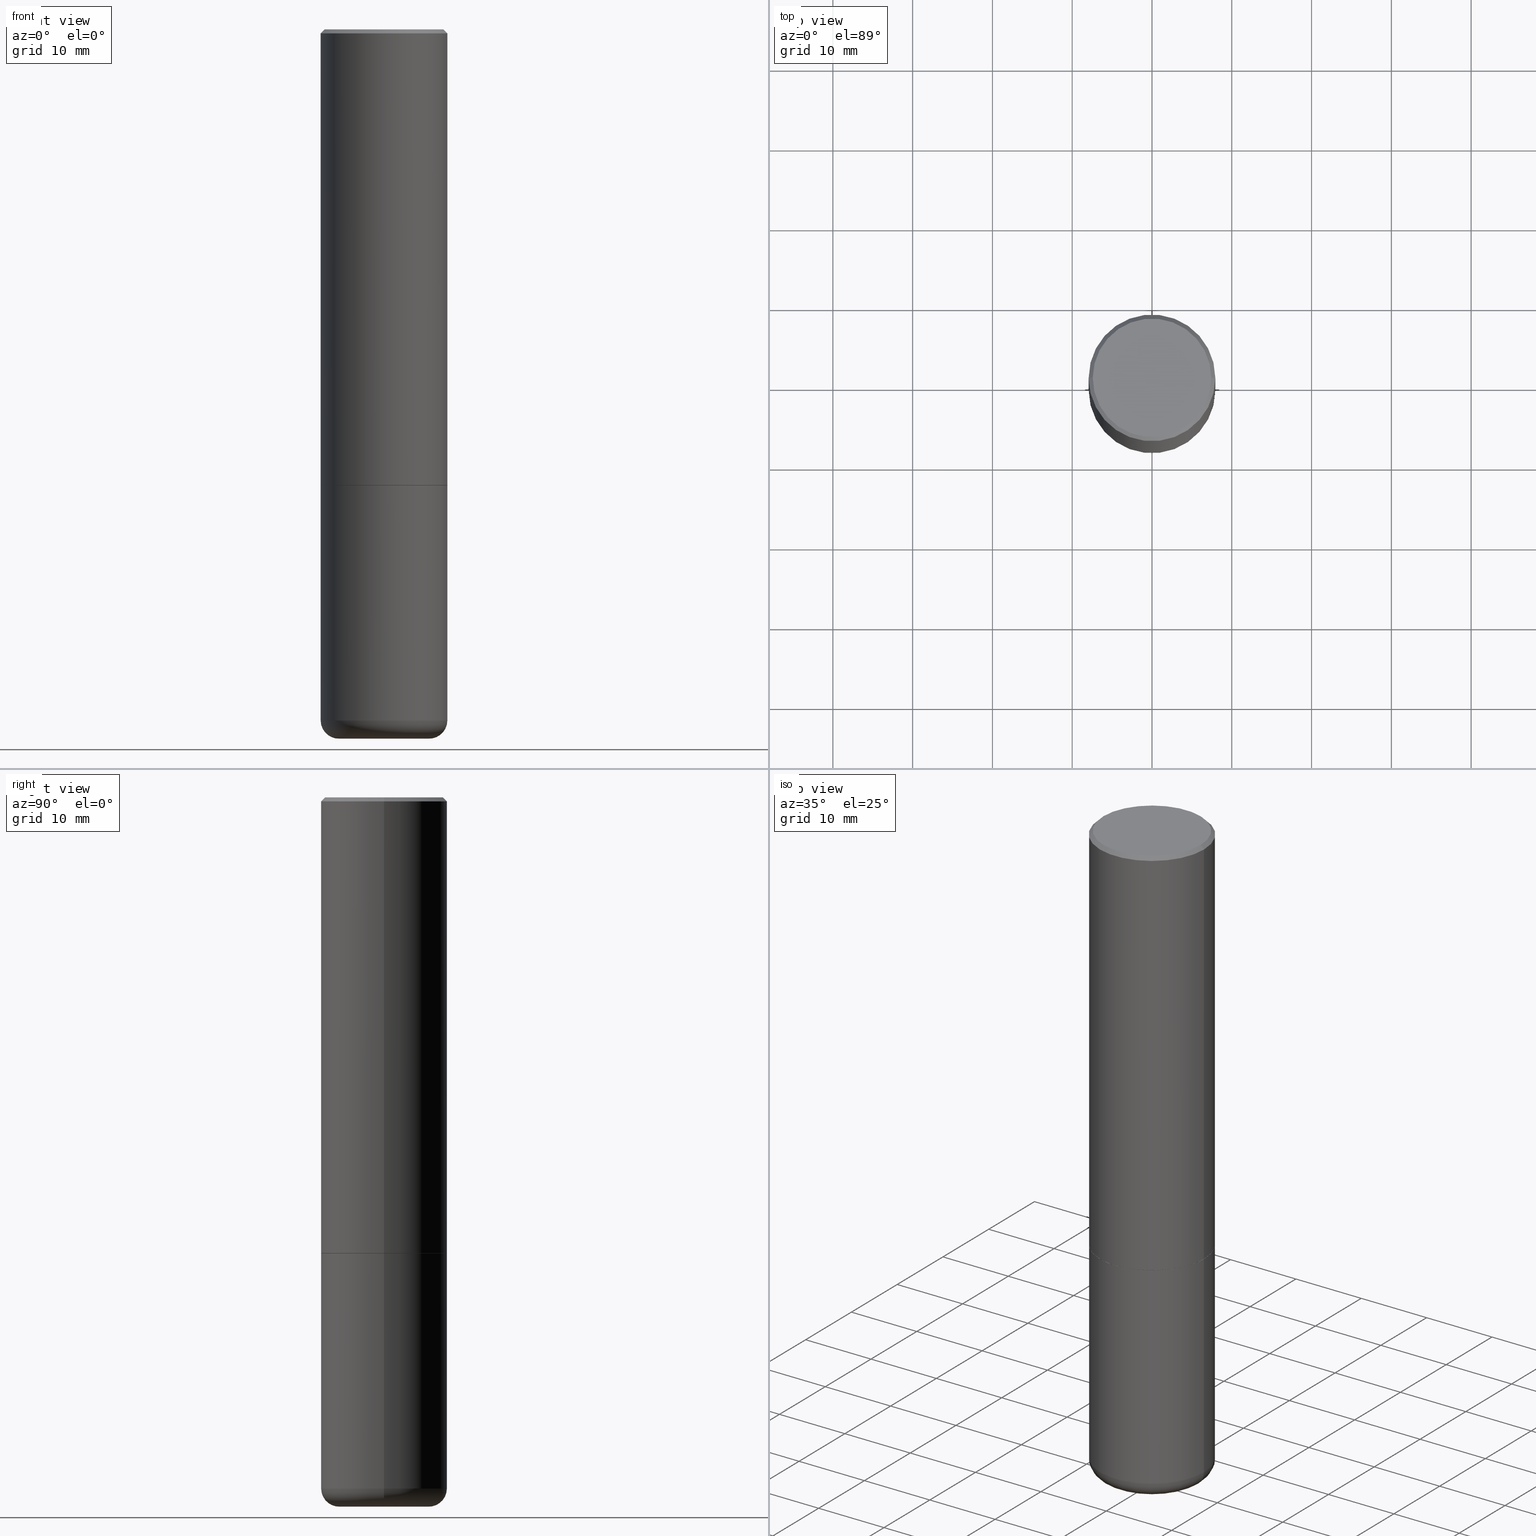
[diagram: canonical four-view strip — front | top / right | iso, engineering-drawing reading convention]
A machine part, canonical four-view strip (front | top / right | iso — engineering-drawing reading convention). The complete STEP part file that produces these views, byte-faithful:
ISO-10303-21;
HEADER;
FILE_DESCRIPTION (( 'STEP AP203' ),
    '1' );
FILE_NAME ('38083.STEP',
    '2023-03-22T20:16:22',
    ( '' ),
    ( '' ),
    'SwSTEP 2.0',
    'SolidWorks 2022',
    '' );
FILE_SCHEMA (( 'CONFIG_CONTROL_DESIGN' ));
ENDSEC;

DATA;
#1 = CARTESIAN_POINT ( 'NONE',  ( -0.3114999999999999991, -5.642492390504364798E-15, -2.249999999999999556 ) ) ;
#2 = EDGE_LOOP ( 'NONE', ( #284, #131 ) ) ;
#3 = CARTESIAN_POINT ( 'NONE',  ( 0.3125000000000001665, -2.182175836776959530E-15, 1.523805242436230636E-29 ) ) ;
#4 = CARTESIAN_POINT ( 'NONE',  ( 8.530579847116427823E-29, -1.218126230851714959E-14, -3.488586122121426047 ) ) ;
#5 = CARTESIAN_POINT ( 'NONE',  ( 5.502304813916556222E-29, -7.855833012397076871E-15, -2.249999999999999556 ) ) ;
#6 = CIRCLE ( 'NONE', #253, 0.3125000000000002776 ) ;
#7 = CC_DESIGN_PERSON_AND_ORGANIZATION_ASSIGNMENT ( #296, #89, ( #173 ) ) ;
#8 = VERTEX_POINT ( 'NONE', #276 ) ;
#9 = ORIENTED_EDGE ( 'NONE', *, *, #212, .T. ) ;
#10 = EDGE_LOOP ( 'NONE', ( #137, #77, #236, #417 ) ) ;
#11 = CARTESIAN_POINT ( 'NONE',  ( 2.182175836777013173E-15, 0.3124999999999921729, -2.250000000000000444 ) ) ;
#12 = VERTEX_POINT ( 'NONE', #175 ) ;
#13 = ORIENTED_EDGE ( 'NONE', *, *, #340, .T. ) ;
#14 = APPLICATION_CONTEXT ( 'configuration controlled 3d designs of mechanical parts and assemblies' ) ;
#15 = EDGE_CURVE ( 'NONE', #411, #12, #291, .T. ) ;
#16 = CC_DESIGN_PERSON_AND_ORGANIZATION_ASSIGNMENT ( #364, #259, ( #275 ) ) ;
#17 = DIRECTION ( 'NONE',  ( -2.445468806185136597E-29, 3.491481338843145583E-15, 1.000000000000000000 ) ) ;
#18 = APPLICATION_PROTOCOL_DEFINITION ( 'international standard', 'config_control_design', 1994, #14 ) ;
#19 = CARTESIAN_POINT ( 'NONE',  ( 5.502304813916556222E-29, -7.855833012397076871E-15, -2.249999999999999556 ) ) ;
#20 = ORIENTED_EDGE ( 'NONE', *, *, #47, .T. ) ;
#21 = VECTOR ( 'NONE', #257, 39.37007874015748143 ) ;
#22 = ADVANCED_FACE ( 'NONE', ( #385 ), #356, .T. ) ;
#23 = MECHANICAL_CONTEXT ( 'NONE', #180, 'mechanical' ) ;
#24 = AXIS2_PLACEMENT_3D ( 'NONE', #30, #97, #372 ) ;
#25 =( LENGTH_UNIT ( ) NAMED_UNIT ( * ) SI_UNIT ( $, .METRE. ) );
#26 = CARTESIAN_POINT ( 'NONE',  ( 0.3114999999999999991, -1.003102588649634920E-14, -2.249999999999999556 ) ) ;
#27 = PERSON_AND_ORGANIZATION_ROLE ( 'creator' ) ;
#28 = CARTESIAN_POINT ( 'NONE',  ( 5.499859345110370619E-29, -7.852341531058232286E-15, -2.248999999999999222 ) ) ;
#29 = DIRECTION ( 'NONE',  ( 1.000000000000000000, -6.982962677686265133E-15, 0.000000000000000000 ) ) ;
#30 = CARTESIAN_POINT ( 'NONE',  ( 4.890937612370278413E-31, -6.982962677686297772E-17, -0.02000000000000002123 ) ) ;
#31 = DIRECTION ( 'NONE',  ( -2.445468806185136597E-29, 3.491481338843145583E-15, 1.000000000000000000 ) ) ;
#32 = CONICAL_SURFACE ( 'NONE', #102, 751.2258538476771719, 1.518436449235074370 ) ;
#33 = PRODUCT_DEFINITION_FORMATION_WITH_SPECIFIED_SOURCE ( 'ANY', '', #275, .NOT_KNOWN. ) ;
#34 = DIRECTION ( 'NONE',  ( -2.445468806185136877E-29, 3.491481338843145188E-15, 1.000000000000000000 ) ) ;
#35 = ORIENTED_EDGE ( 'NONE', *, *, #115, .F. ) ;
#36 = FACE_OUTER_BOUND ( 'NONE', #280, .T. ) ;
#37 = PRODUCT_DEFINITION_SHAPE ( 'NONE', 'NONE',  #355 ) ;
#38 = ORIENTED_EDGE ( 'NONE', *, *, #289, .F. ) ;
#39 = APPROVAL ( #63, 'UNSPECIFIED' ) ;
#40 = DIRECTION ( 'NONE',  ( -2.445468806185136877E-29, 3.491481338843145188E-15, 1.000000000000000000 ) ) ;
#41 = CIRCLE ( 'NONE', #416, 0.3125000000000000000 ) ;
#42 = AXIS2_PLACEMENT_3D ( 'NONE', #427, #215, #359 ) ;
#43 = ORIENTED_EDGE ( 'NONE', *, *, #340, .F. ) ;
#44 = CARTESIAN_POINT ( 'NONE',  ( 5.499859345110370619E-29, -7.852341531058232286E-15, -2.248999999999999222 ) ) ;
#45 = ORIENTED_EDGE ( 'NONE', *, *, #228, .T. ) ;
#46 = CARTESIAN_POINT ( 'NONE',  ( -0.3125000000000000000, -7.660661462598133760E-15, -2.249999999999999556 ) ) ;
#47 = EDGE_CURVE ( 'NONE', #366, #411, #308, .T. ) ;
#48 = ORIENTED_EDGE ( 'NONE', *, *, #152, .T. ) ;
#49 = DIRECTION ( 'NONE',  ( -2.445468806185136597E-29, 3.491481338843145583E-15, 1.000000000000000000 ) ) ;
#50 = VECTOR ( 'NONE', #134, 39.37007874015748143 ) ;
#51 = CIRCLE ( 'NONE', #223, 0.3114999999999999991 ) ;
#52 = EDGE_CURVE ( 'NONE', #348, #162, #351, .T. ) ;
#53 = FACE_OUTER_BOUND ( 'NONE', #336, .T. ) ;
#54 = AXIS2_PLACEMENT_3D ( 'NONE', #376, #132, #273 ) ;
#55 = DIRECTION ( 'NONE',  ( 1.000000000000000000, -6.982962677686269077E-15, 0.000000000000000000 ) ) ;
#56 = COORDINATED_UNIVERSAL_TIME_OFFSET ( 5, 0, .BEHIND. ) ;
#57 = DIRECTION ( 'NONE',  ( -2.445468806185136597E-29, 3.491481338843145583E-15, 1.000000000000000000 ) ) ;
#58 = APPROVAL_DATE_TIME ( #360, #219 ) ;
#59 = DIRECTION ( 'NONE',  ( -2.445468806185136597E-29, 3.491481338843145583E-15, 1.000000000000000000 ) ) ;
#60 = CC_DESIGN_PERSON_AND_ORGANIZATION_ASSIGNMENT ( #94, #27, ( #355 ) ) ;
#61 = CARTESIAN_POINT ( 'NONE',  ( 1.048095279954460668E-27, -1.496402285743792589E-13, -42.85866486227890704 ) ) ;
#62 = DIRECTION ( 'NONE',  ( -2.445468806185136597E-29, 3.491481338843145583E-15, 1.000000000000000000 ) ) ;
#63 = APPROVAL_STATUS ( 'not_yet_approved' ) ;
#64 = VECTOR ( 'NONE', #34, 39.37007874015748143 ) ;
#65 = APPROVAL_STATUS ( 'not_yet_approved' ) ;
#66 = LINE ( 'NONE', #26, #21 ) ;
#67 = ORIENTED_EDGE ( 'NONE', *, *, #84, .F. ) ;
#68 = PRODUCT_RELATED_PRODUCT_CATEGORY ( 'detail', '', ( #275 ) ) ;
#69 = DIRECTION ( 'NONE',  ( 1.000000000000000000, -6.982962677686269077E-15, 4.883557194083113462E-29 ) ) ;
#70 = DIRECTION ( 'NONE',  ( -2.445468806185136597E-29, 3.491481338843145583E-15, 1.000000000000000000 ) ) ;
#71 = CIRCLE ( 'NONE', #243, 0.3125000000000002776 ) ;
#72 = TOROIDAL_SURFACE ( 'NONE', #343, 0.2225000000000000033, 0.09000000000000024647 ) ;
#73 = VERTEX_POINT ( 'NONE', #46 ) ;
#74 = CARTESIAN_POINT ( 'NONE',  ( 8.559140821647976968E-29, -1.222018468595100934E-14, -3.500000000000000000 ) ) ;
#75 = VERTEX_POINT ( 'NONE', #242 ) ;
#76 = FACE_OUTER_BOUND ( 'NONE', #379, .T. ) ;
#77 = ORIENTED_EDGE ( 'NONE', *, *, #84, .T. ) ;
#78 = CIRCLE ( 'NONE', #380, 0.2177897639381356776 ) ;
#79 = ORIENTED_EDGE ( 'NONE', *, *, #225, .T. ) ;
#80 = CARTESIAN_POINT ( 'NONE',  ( 8.339350257792001869E-29, -1.190638201129981839E-14, -3.410123341872087543 ) ) ;
#81 = ORIENTED_EDGE ( 'NONE', *, *, #320, .F. ) ;
#82 = VERTEX_POINT ( 'NONE', #381 ) ;
#83 = DIRECTION ( 'NONE',  ( -2.445468806185136597E-29, 3.491481338843145583E-15, 1.000000000000000000 ) ) ;
#84 = EDGE_CURVE ( 'NONE', #12, #82, #6, .T. ) ;
#85 = APPROVAL_STATUS ( 'not_yet_approved' ) ;
#86 = CONICAL_SURFACE ( 'NONE', #54, 0.3124999999999998335, 0.7853981633974473908 ) ;
#87 = VERTEX_POINT ( 'NONE', #170 ) ;
#88 = PERSON_AND_ORGANIZATION ( #139, #214 ) ;
#89 = PERSON_AND_ORGANIZATION_ROLE ( 'classification_officer' ) ;
#90 = ORIENTED_EDGE ( 'NONE', *, *, #251, .F. ) ;
#91 = DIRECTION ( 'NONE',  ( -2.445468806185136597E-29, 3.491481338843145583E-15, 1.000000000000000000 ) ) ;
#92 = APPLICATION_PROTOCOL_DEFINITION ( 'international standard', 'config_control_design', 1994, #180 ) ;
#93 = VECTOR ( 'NONE', #109, 39.37007874015748143 ) ;
#94 = PERSON_AND_ORGANIZATION ( #139, #214 ) ;
#95 = CIRCLE ( 'NONE', #24, 0.3124999999999998335 ) ;
#96 = FACE_OUTER_BOUND ( 'NONE', #373, .T. ) ;
#97 = DIRECTION ( 'NONE',  ( -2.445468806185136597E-29, 3.491481338843145583E-15, 1.000000000000000000 ) ) ;
#98 = ORIENTED_EDGE ( 'NONE', *, *, #190, .T. ) ;
#99 = AXIS2_PLACEMENT_3D ( 'NONE', #428, #301, #272 ) ;
#100 = LINE ( 'NONE', #371, #365 ) ;
#101 = VECTOR ( 'NONE', #345, 39.37007874015748143 ) ;
#102 = AXIS2_PLACEMENT_3D ( 'NONE', #198, #334, #418 ) ;
#103 = APPROVAL_PERSON_ORGANIZATION ( #125, #230, #255 ) ;
#104 = EDGE_LOOP ( 'NONE', ( #436, #79, #136, #90 ) ) ;
#105 = LINE ( 'NONE', #201, #64 ) ;
#106 = DIRECTION ( 'NONE',  ( -2.445468806185136597E-29, 3.491481338843145583E-15, 1.000000000000000000 ) ) ;
#107 = VECTOR ( 'NONE', #310, 39.37007874015748143 ) ;
#108 = CARTESIAN_POINT ( 'NONE',  ( 5.502304813916556222E-29, -7.855833012397075293E-15, -2.249999999999999556 ) ) ;
#109 = DIRECTION ( 'NONE',  ( -0.7071067811864267805, 7.493145998869918709E-15, 0.7071067811866682540 ) ) ;
#110 = ORIENTED_EDGE ( 'NONE', *, *, #289, .T. ) ;
#111 = CC_DESIGN_DATE_AND_TIME_ASSIGNMENT ( #357, #252, ( #355 ) ) ;
#112 = AXIS2_PLACEMENT_3D ( 'NONE', #423, #122, #396 ) ;
#113 = LOCAL_TIME ( 16, 16, 22.00000000000000000, #56 ) ;
#114 = FACE_OUTER_BOUND ( 'NONE', #204, .T. ) ;
#115 = EDGE_CURVE ( 'NONE', #82, #197, #233, .T. ) ;
#116 = AXIS2_PLACEMENT_3D ( 'NONE', #127, #306, #339 ) ;
#117 = ORIENTED_EDGE ( 'NONE', *, *, #135, .T. ) ;
#118 = DATE_AND_TIME ( #290, #178 ) ;
#119 = SHAPE_DEFINITION_REPRESENTATION ( #37, #218 ) ;
#120 = EDGE_CURVE ( 'NONE', #73, #197, #281, .T. ) ;
#121 = DESIGN_CONTEXT ( 'detailed design', #14, 'design' ) ;
#122 = DIRECTION ( 'NONE',  ( -2.445468806185136597E-29, 3.491481338843145583E-15, 1.000000000000000000 ) ) ;
#123 = ORIENTED_EDGE ( 'NONE', *, *, #135, .F. ) ;
#124 = VECTOR ( 'NONE', #258, 39.37007874015748143 ) ;
#125 = PERSON_AND_ORGANIZATION ( #139, #214 ) ;
#126 = CC_DESIGN_APPROVAL ( #230, ( #355 ) ) ;
#127 = CARTESIAN_POINT ( 'NONE',  ( -1.043851414335219820E-46, 1.490343170380447200E-32, 4.268512490100411279E-18 ) ) ;
#128 = EDGE_LOOP ( 'NONE', ( #406, #392, #377, #38 ) ) ;
#129 = CLOSED_SHELL ( 'NONE', ( #303, #426, #22, #150, #421, #176, #200 ) ) ;
#130 = DIRECTION ( 'NONE',  ( -2.445468806185136597E-29, 3.491481338843145583E-15, 1.000000000000000000 ) ) ;
#131 = ORIENTED_EDGE ( 'NONE', *, *, #52, .F. ) ;
#132 = DIRECTION ( 'NONE',  ( 2.445468806185136597E-29, -3.491481338843145583E-15, -1.000000000000000000 ) ) ;
#133 = EDGE_LOOP ( 'NONE', ( #221, #48, #171, #35 ) ) ;
#134 = DIRECTION ( 'NONE',  ( -0.9986295347545742773, 6.790662755453668466E-15, -0.05233595624293620185 ) ) ;
#135 = EDGE_CURVE ( 'NONE', #75, #8, #156, .T. ) ;
#136 = ORIENTED_EDGE ( 'NONE', *, *, #344, .F. ) ;
#137 = ORIENTED_EDGE ( 'NONE', *, *, #152, .F. ) ;
#138 = AXIS2_PLACEMENT_3D ( 'NONE', #163, #368, #407 ) ;
#139 = PERSON ( 'UNSPECIFIED', 'UNSPECIFIED', 'UNSPECIFIED', ('UNSPECIFIED'), ('UNSPECIFIED'), ('UNSPECIFIED') ) ;
#140 = AXIS2_PLACEMENT_3D ( 'NONE', #321, #429, #363 ) ;
#141 = MANIFOLD_SOLID_BREP ( 'Body-Move/Copy2[1]', #129 ) ;
#142 = CONICAL_SURFACE ( 'NONE', #395, 0.3114999999999999991, 0.7853981633972775267 ) ;
#143 = FACE_OUTER_BOUND ( 'NONE', #2, .T. ) ;
#144 = EDGE_CURVE ( 'NONE', #82, #12, #71, .T. ) ;
#145 = CARTESIAN_POINT ( 'NONE',  ( -0.3125000000000000000, -1.740639529667232739E-15, -2.248999999999999222 ) ) ;
#146 = CARTESIAN_POINT ( 'NONE',  ( -0.2177897639381356776, -1.017931565055450838E-14, -3.500000000000000000 ) ) ;
#147 = COORDINATED_UNIVERSAL_TIME_OFFSET ( 5, 0, .BEHIND. ) ;
#148 = DIRECTION ( 'NONE',  ( -2.438088387897960049E-29, 3.491481338843145188E-15, 1.000000000000000000 ) ) ;
#149 = EDGE_LOOP ( 'NONE', ( #347, #123, #9, #307 ) ) ;
#150 = ADVANCED_FACE ( 'NONE', ( #172 ), #312, .F. ) ;
#151 = DATE_AND_TIME ( #386, #354 ) ;
#152 = EDGE_CURVE ( 'NONE', #12, #73, #100, .T. ) ;
#153 = SECURITY_CLASSIFICATION_LEVEL ( 'unclassified' ) ;
#154 = DIRECTION ( 'NONE',  ( -1.000000000000000000, 6.982962677686267499E-15, 0.000000000000000000 ) ) ;
#155 = CALENDAR_DATE ( 2023, 22, 3 ) ;
#156 = CIRCLE ( 'NONE', #358, 0.2924999999999998157 ) ;
#157 = CARTESIAN_POINT ( 'NONE',  ( 0.3114999999999999991, -1.003102588649634920E-14, -2.249999999999999556 ) ) ;
#158 = VERTEX_POINT ( 'NONE', #266 ) ;
#159 = DIRECTION ( 'NONE',  ( -2.445468806185136597E-29, 3.491481338843145583E-15, 1.000000000000000000 ) ) ;
#160 = DIRECTION ( 'NONE',  ( -2.445468806185136597E-29, 3.491481338843145583E-15, 1.000000000000000000 ) ) ;
#161 = DIRECTION ( 'NONE',  ( 1.000000000000000000, -6.982962677686266711E-15, 0.000000000000000000 ) ) ;
#162 = VERTEX_POINT ( 'NONE', #157 ) ;
#163 = CARTESIAN_POINT ( 'NONE',  ( 2.042516583223231356E-15, 0.2924999999999998157, -1.019124035366569212E-15 ) ) ;
#164 = CIRCLE ( 'NONE', #441, 0.3125000000000000000 ) ;
#165 = ORIENTED_EDGE ( 'NONE', *, *, #52, .T. ) ;
#166 =( CONVERSION_BASED_UNIT ( 'INCH', #374 ) LENGTH_UNIT ( ) NAMED_UNIT ( #229 ) );
#167 = CARTESIAN_POINT ( 'NONE',  ( -9.289641829308705309E-19, -1.218033334433413419E-14, -3.488586122121426047 ) ) ;
#168 = ADVANCED_FACE ( 'NONE', ( #399 ), #269, .F. ) ;
#169 = ORIENTED_EDGE ( 'NONE', *, *, #225, .F. ) ;
#170 = CARTESIAN_POINT ( 'NONE',  ( 0.3125000000000000000, -1.003451736783519063E-14, -2.248999999999999222 ) ) ;
#171 = ORIENTED_EDGE ( 'NONE', *, *, #190, .F. ) ;
#172 = FACE_OUTER_BOUND ( 'NONE', #414, .T. ) ;
#173 = SECURITY_CLASSIFICATION ( '', '', #153 ) ;
#174 = FACE_OUTER_BOUND ( 'NONE', #104, .T. ) ;
#175 = CARTESIAN_POINT ( 'NONE',  ( -0.3125000000000002776, -7.660661462598130604E-15, -3.410123341872087543 ) ) ;
#176 = ADVANCED_FACE ( 'NONE', ( #96 ), #384, .T. ) ;
#177 = AXIS2_PLACEMENT_3D ( 'NONE', #19, #148, #293 ) ;
#178 = LOCAL_TIME ( 16, 16, 22.00000000000000000, #147 ) ;
#179 = CYLINDRICAL_SURFACE ( 'NONE', #316, 0.3124999999999998890 ) ;
#180 = APPLICATION_CONTEXT ( 'configuration controlled 3d designs of mechanical parts and assemblies' ) ;
#181 = CARTESIAN_POINT ( 'NONE',  ( 8.339350257792001869E-29, -1.190638201129981839E-14, -3.410123341872087543 ) ) ;
#182 = COORDINATED_UNIVERSAL_TIME_OFFSET ( 5, 0, .BEHIND. ) ;
#183 = DIRECTION ( 'NONE',  ( 1.000000000000000000, -6.982962677686269077E-15, 0.000000000000000000 ) ) ;
#184 = LINE ( 'NONE', #295, #124 ) ;
#185 = VECTOR ( 'NONE', #299, 39.37007874015748143 ) ;
#186 = EDGE_CURVE ( 'NONE', #162, #348, #51, .T. ) ;
#187 = PERSON_AND_ORGANIZATION_ROLE ( 'creator' ) ;
#188 = PERSON_AND_ORGANIZATION ( #139, #214 ) ;
#189 = DIRECTION ( 'NONE',  ( 1.000000000000000000, -6.982962677686265922E-15, 0.000000000000000000 ) ) ;
#190 = EDGE_CURVE ( 'NONE', #197, #73, #41, .T. ) ;
#191 = CIRCLE ( 'NONE', #369, 0.09000000000000027423 ) ;
#192 = CARTESIAN_POINT ( 'NONE',  ( 0.3125000000000000000, -1.003800884917403364E-14, -2.249999999999999556 ) ) ;
#193 = LINE ( 'NONE', #335, #313 ) ;
#194 = LINE ( 'NONE', #1, #93 ) ;
#195 = DIRECTION ( 'NONE',  ( 1.000000000000000000, -6.982962677686265922E-15, 0.000000000000000000 ) ) ;
#196 = DIRECTION ( 'NONE',  ( -2.445468806185136597E-29, 3.491481338843145583E-15, 1.000000000000000000 ) ) ;
#197 = VERTEX_POINT ( 'NONE', #192 ) ;
#198 = CARTESIAN_POINT ( 'NONE',  ( 1.048095279954460668E-27, -1.496402285743792589E-13, -42.85866486227890704 ) ) ;
#199 = ORIENTED_EDGE ( 'NONE', *, *, #337, .F. ) ;
#200 = ADVANCED_FACE ( 'NONE', ( #76 ), #32, .F. ) ;
#201 = CARTESIAN_POINT ( 'NONE',  ( -0.3124999999999998890, 2.220446049250312292E-15, -1.537167215704657391E-29 ) ) ;
#202 = CC_DESIGN_APPROVAL ( #219, ( #173 ) ) ;
#203 = DIRECTION ( 'NONE',  ( 1.000000000000000000, -6.982962677686269077E-15, 0.000000000000000000 ) ) ;
#204 = EDGE_LOOP ( 'NONE', ( #265, #165, #422, #439 ) ) ;
#205 = DIRECTION ( 'NONE',  ( 1.000000000000000000, -6.982962677686266711E-15, 4.876067333457692840E-29 ) ) ;
#206 = EDGE_CURVE ( 'NONE', #8, #209, #227, .T. ) ;
#207 = EDGE_CURVE ( 'NONE', #348, #370, #194, .T. ) ;
#208 = AXIS2_PLACEMENT_3D ( 'NONE', #61, #319, #154 ) ;
#209 = VERTEX_POINT ( 'NONE', #232 ) ;
#210 = DIRECTION ( 'NONE',  ( -1.000000000000000000, 7.105427357600990815E-15, 0.000000000000000000 ) ) ;
#211 = ADVANCED_FACE ( 'NONE', ( #174 ), #338, .T. ) ;
#212 = EDGE_CURVE ( 'NONE', #75, #158, #193, .T. ) ;
#213 =( NAMED_UNIT ( * ) PLANE_ANGLE_UNIT ( ) SI_UNIT ( $, .RADIAN. ) );
#214 = ORGANIZATION ( 'UNSPECIFIED', 'UNSPECIFIED', '' ) ;
#215 = DIRECTION ( 'NONE',  ( 2.445468806185136597E-29, -3.491481338843145583E-15, -1.000000000000000000 ) ) ;
#216 = CALENDAR_DATE ( 2023, 22, 3 ) ;
#217 = DIRECTION ( 'NONE',  ( -6.982962677686266711E-15, -1.000000000000000000, 3.491481338843145583E-15 ) ) ;
#218 = ADVANCED_BREP_SHAPE_REPRESENTATION ( '38083', ( #141, #286, #140 ), #292 ) ;
#219 = APPROVAL ( #85, 'UNSPECIFIED' ) ;
#220 = FACE_OUTER_BOUND ( 'NONE', #247, .T. ) ;
#221 = ORIENTED_EDGE ( 'NONE', *, *, #144, .T. ) ;
#222 = DIRECTION ( 'NONE',  ( 1.000000000000000000, -6.982962677686269077E-15, 4.883557194083113462E-29 ) ) ;
#223 = AXIS2_PLACEMENT_3D ( 'NONE', #279, #70, #189 ) ;
#224 = ORIENTED_EDGE ( 'NONE', *, *, #120, .T. ) ;
#225 = EDGE_CURVE ( 'NONE', #370, #158, #105, .T. ) ;
#226 = PERSON_AND_ORGANIZATION_ROLE ( 'design_supplier' ) ;
#227 = LINE ( 'NONE', #331, #185 ) ;
#228 = EDGE_CURVE ( 'NONE', #8, #75, #249, .T. ) ;
#229 = DIMENSIONAL_EXPONENTS ( 1.000000000000000000, 0.000000000000000000, 0.000000000000000000, 0.000000000000000000, 0.000000000000000000, 0.000000000000000000, 0.000000000000000000 ) ;
#230 = APPROVAL ( #65, 'UNSPECIFIED' ) ;
#231 = AXIS2_PLACEMENT_3D ( 'NONE', #425, #353, #210 ) ;
#232 = CARTESIAN_POINT ( 'NONE',  ( 0.3124999999999998335, -2.213735251080465334E-15, -0.02000000000000002123 ) ) ;
#233 = LINE ( 'NONE', #3, #107 ) ;
#234 = DIRECTION ( 'NONE',  ( 1.000000000000000000, -6.982962677686266711E-15, 0.000000000000000000 ) ) ;
#235 = DIRECTION ( 'NONE',  ( 1.000000000000000000, -6.982962677686266711E-15, 4.876176775795935232E-29 ) ) ;
#236 = ORIENTED_EDGE ( 'NONE', *, *, #115, .T. ) ;
#237 = CARTESIAN_POINT ( 'NONE',  ( 8.339350257792001869E-29, -1.190638201129981839E-14, -3.410123341872087543 ) ) ;
#238 = FACE_OUTER_BOUND ( 'NONE', #288, .T. ) ;
#239 = ADVANCED_FACE ( 'NONE', ( #36 ), #142, .T. ) ;
#240 = ORIENTED_EDGE ( 'NONE', *, *, #251, .T. ) ;
#241 = CARTESIAN_POINT ( 'NONE',  ( 0.3124999999999998890, -2.182175836776957558E-15, 1.523805242436229235E-29 ) ) ;
#242 = CARTESIAN_POINT ( 'NONE',  ( -0.2924999999999998157, 2.077431396611662611E-15, 4.268512490086005323E-18 ) ) ;
#243 = AXIS2_PLACEMENT_3D ( 'NONE', #349, #49, #408 ) ;
#244 = CC_DESIGN_SECURITY_CLASSIFICATION ( #173, ( #33 ) ) ;
#245 = ORIENTED_EDGE ( 'NONE', *, *, #212, .F. ) ;
#246 = DIRECTION ( 'NONE',  ( 1.000000000000000000, -6.982962677686265133E-15, 0.000000000000000000 ) ) ;
#247 = EDGE_LOOP ( 'NONE', ( #400, #263, #43 ) ) ;
#248 = DIRECTION ( 'NONE',  ( -2.445468806185136597E-29, 3.491481338843145583E-15, 1.000000000000000000 ) ) ;
#249 = CIRCLE ( 'NONE', #116, 0.2924999999999998157 ) ;
#250 = ADVANCED_FACE ( 'NONE', ( #238 ), #86, .T. ) ;
#251 = EDGE_CURVE ( 'NONE', #87, #209, #412, .T. ) ;
#252 = DATE_TIME_ROLE ( 'creation_date' ) ;
#253 = AXIS2_PLACEMENT_3D ( 'NONE', #80, #160, #203 ) ;
#254 = CIRCLE ( 'NONE', #324, 0.2177897639381356776 ) ;
#255 = APPROVAL_ROLE ( '' ) ;
#256 = EDGE_CURVE ( 'NONE', #370, #87, #332, .T. ) ;
#257 = DIRECTION ( 'NONE',  ( 0.7071067811864267805, -2.468850131080992517E-15, 0.7071067811866682540 ) ) ;
#258 = DIRECTION ( 'NONE',  ( 0.9986295347545742773, -7.033825938271996334E-15, -0.05233595624293620185 ) ) ;
#259 = PERSON_AND_ORGANIZATION_ROLE ( 'design_owner' ) ;
#260 = CARTESIAN_POINT ( 'NONE',  ( 4.890937612370278413E-31, -6.982962677686297772E-17, -0.02000000000000002123 ) ) ;
#261 = CARTESIAN_POINT ( 'NONE',  ( 0.000000000000000000, 0.000000000000000000, 0.000000000000000000 ) ) ;
#262 = AXIS2_PLACEMENT_3D ( 'NONE', #237, #159, #69 ) ;
#263 = ORIENTED_EDGE ( 'NONE', *, *, #328, .T. ) ;
#264 = ADVANCED_FACE ( 'NONE', ( #114 ), #404, .T. ) ;
#265 = ORIENTED_EDGE ( 'NONE', *, *, #207, .F. ) ;
#266 = CARTESIAN_POINT ( 'NONE',  ( -0.3124999999999998335, 2.112346210000093866E-15, -0.02000000000000002123 ) ) ;
#267 = DIRECTION ( 'NONE',  ( 2.438088387897960049E-29, -3.491481338843145188E-15, -1.000000000000000000 ) ) ;
#268 = ORIENTED_EDGE ( 'NONE', *, *, #328, .F. ) ;
#269 = PLANE ( 'NONE',  #138 ) ;
#270 = DIRECTION ( 'NONE',  ( -2.445468806185136597E-29, 3.491481338843145583E-15, 1.000000000000000000 ) ) ;
#271 = ORIENTED_EDGE ( 'NONE', *, *, #207, .T. ) ;
#272 = DIRECTION ( 'NONE',  ( 1.000000000000000000, -6.982962677686266711E-15, 4.876176775795935232E-29 ) ) ;
#273 = DIRECTION ( 'NONE',  ( -1.000000000000000000, 6.982962677686265133E-15, 0.000000000000000000 ) ) ;
#274 = ORIENTED_EDGE ( 'NONE', *, *, #206, .T. ) ;
#275 = PRODUCT ( '38083', '38083', '', ( #23 ) ) ;
#276 = CARTESIAN_POINT ( 'NONE',  ( 0.2924999999999998157, -2.110215457714318748E-15, 4.268512490114932791E-18 ) ) ;
#277 = AXIS2_PLACEMENT_3D ( 'NONE', #108, #130, #246 ) ;
#278 = UNCERTAINTY_MEASURE_WITH_UNIT (LENGTH_MEASURE( 1.000000000000000082E-05 ), #166, 'distance_accuracy_value', 'NONE');
#279 = CARTESIAN_POINT ( 'NONE',  ( 5.502304813916556222E-29, -7.855833012397076871E-15, -2.249999999999999556 ) ) ;
#280 = EDGE_LOOP ( 'NONE', ( #304, #271, #199, #81 ) ) ;
#281 = CIRCLE ( 'NONE', #277, 0.3125000000000000000 ) ;
#282 = LOCAL_TIME ( 16, 16, 22.00000000000000000, #182 ) ;
#283 = FACE_OUTER_BOUND ( 'NONE', #149, .T. ) ;
#284 = ORIENTED_EDGE ( 'NONE', *, *, #186, .F. ) ;
#285 = DIRECTION ( 'NONE',  ( 1.000000000000000000, -6.982962677686265133E-15, 0.000000000000000000 ) ) ;
#286 = MANIFOLD_SOLID_BREP ( 'Body-Move/Copy2[2]', #431 ) ;
#287 = PLANE ( 'NONE',  #177 ) ;
#288 = EDGE_LOOP ( 'NONE', ( #327, #274, #419, #245 ) ) ;
#289 = EDGE_CURVE ( 'NONE', #330, #82, #191, .T. ) ;
#290 = CALENDAR_DATE ( 2023, 22, 3 ) ;
#291 = CIRCLE ( 'NONE', #231, 0.09000000000000027423 ) ;
#292 =( GEOMETRIC_REPRESENTATION_CONTEXT ( 3 ) GLOBAL_UNCERTAINTY_ASSIGNED_CONTEXT ( ( #278 ) ) GLOBAL_UNIT_ASSIGNED_CONTEXT ( ( #166, #213, #326 ) ) REPRESENTATION_CONTEXT ( 'NONE', 'WORKASPACE' ) );
#293 = DIRECTION ( 'NONE',  ( 1.000000000000000000, -6.982962677686265922E-15, 4.876176775795935793E-29 ) ) ;
#294 = APPROVAL_ROLE ( '' ) ;
#295 = CARTESIAN_POINT ( 'NONE',  ( 9.289641831014952129E-19, -1.218033334433413419E-14, -3.488586122121426047 ) ) ;
#296 = PERSON_AND_ORGANIZATION ( #139, #214 ) ;
#297 = APPROVAL_DATE_TIME ( #118, #39 ) ;
#298 = CIRCLE ( 'NONE', #378, 0.3124999999999998335 ) ;
#299 = DIRECTION ( 'NONE',  ( 0.7071067811865469066, -7.319954787623254468E-15, -0.7071067811865481278 ) ) ;
#300 = ORIENTED_EDGE ( 'NONE', *, *, #256, .T. ) ;
#301 = DIRECTION ( 'NONE',  ( -2.445468806185136597E-29, 3.491481338843145583E-15, 1.000000000000000000 ) ) ;
#302 = CARTESIAN_POINT ( 'NONE',  ( -0.3114999999999999991, -5.637193936156142396E-15, -2.249999999999999556 ) ) ;
#303 = ADVANCED_FACE ( 'NONE', ( #220 ), #433, .F. ) ;
#304 = ORIENTED_EDGE ( 'NONE', *, *, #186, .T. ) ;
#305 = APPROVAL_PERSON_ORGANIZATION ( #394, #39, #388 ) ;
#306 = DIRECTION ( 'NONE',  ( -2.445468806185136597E-29, 3.491481338843145583E-15, 1.000000000000000000 ) ) ;
#307 = ORIENTED_EDGE ( 'NONE', *, *, #329, .T. ) ;
#308 = LINE ( 'NONE', #167, #50 ) ;
#309 = ADVANCED_FACE ( 'NONE', ( #143 ), #287, .F. ) ;
#310 = DIRECTION ( 'NONE',  ( -2.445468806185136877E-29, 3.491481338843145188E-15, 1.000000000000000000 ) ) ;
#311 = EDGE_LOOP ( 'NONE', ( #117, #45 ) ) ;
#312 = PLANE ( 'NONE',  #424 ) ;
#313 = VECTOR ( 'NONE', #341, 39.37007874015748143 ) ;
#314 = AXIS2_PLACEMENT_3D ( 'NONE', #430, #62, #322 ) ;
#315 = AXIS2_PLACEMENT_3D ( 'NONE', #261, #31, #235 ) ;
#316 = AXIS2_PLACEMENT_3D ( 'NONE', #317, #17, #325 ) ;
#317 = CARTESIAN_POINT ( 'NONE',  ( 0.000000000000000000, 0.000000000000000000, 0.000000000000000000 ) ) ;
#318 = COORDINATED_UNIVERSAL_TIME_OFFSET ( 5, 0, .BEHIND. ) ;
#319 = DIRECTION ( 'NONE',  ( 2.445468806185136597E-29, -3.491481338843145583E-15, -1.000000000000000000 ) ) ;
#320 = EDGE_CURVE ( 'NONE', #162, #87, #66, .T. ) ;
#321 = CARTESIAN_POINT ( 'NONE',  ( 0.000000000000000000, 0.000000000000000000, 0.000000000000000000 ) ) ;
#322 = DIRECTION ( 'NONE',  ( 1.000000000000000000, -6.982962677686266711E-15, 4.876176775795935232E-29 ) ) ;
#323 = DATE_AND_TIME ( #367, #434 ) ;
#324 = AXIS2_PLACEMENT_3D ( 'NONE', #402, #409, #234 ) ;
#325 = DIRECTION ( 'NONE',  ( 1.000000000000000000, -6.982962677686266711E-15, 4.876176775795935232E-29 ) ) ;
#326 =( NAMED_UNIT ( * ) SI_UNIT ( $, .STERADIAN. ) SOLID_ANGLE_UNIT ( ) );
#327 = ORIENTED_EDGE ( 'NONE', *, *, #228, .F. ) ;
#328 = EDGE_CURVE ( 'NONE', #366, #330, #184, .T. ) ;
#329 = EDGE_CURVE ( 'NONE', #158, #209, #298, .T. ) ;
#330 = VERTEX_POINT ( 'NONE', #440 ) ;
#331 = CARTESIAN_POINT ( 'NONE',  ( 0.3124999999999998335, -2.213735251080465334E-15, -0.02000000000000002123 ) ) ;
#332 = CIRCLE ( 'NONE', #352, 0.3125000000000000000 ) ;
#333 = CONICAL_SURFACE ( 'NONE', #42, 0.3124999999999998335, 0.7853981633974473908 ) ;
#334 = DIRECTION ( 'NONE',  ( 2.445468806185136597E-29, -3.491481338843145583E-15, -1.000000000000000000 ) ) ;
#335 = CARTESIAN_POINT ( 'NONE',  ( -0.3124999999999998335, 2.112346210000093866E-15, -0.02000000000000002123 ) ) ;
#336 = EDGE_LOOP ( 'NONE', ( #169, #300, #240, #342 ) ) ;
#337 = EDGE_CURVE ( 'NONE', #87, #370, #164, .T. ) ;
#338 = CYLINDRICAL_SURFACE ( 'NONE', #315, 0.3124999999999998890 ) ;
#339 = DIRECTION ( 'NONE',  ( 1.000000000000000000, -6.982962677686266711E-15, 4.876067333457692840E-29 ) ) ;
#340 = EDGE_CURVE ( 'NONE', #411, #330, #254, .T. ) ;
#341 = DIRECTION ( 'NONE',  ( -0.7071067811865469066, 2.468850131082250355E-15, -0.7071067811865481278 ) ) ;
#342 = ORIENTED_EDGE ( 'NONE', *, *, #329, .F. ) ;
#343 = AXIS2_PLACEMENT_3D ( 'NONE', #181, #91, #222 ) ;
#344 = EDGE_CURVE ( 'NONE', #209, #158, #95, .T. ) ;
#345 = DIRECTION ( 'NONE',  ( -2.445468806185136877E-29, 3.491481338843145188E-15, 1.000000000000000000 ) ) ;
#346 = EDGE_CURVE ( 'NONE', #330, #411, #78, .T. ) ;
#347 = ORIENTED_EDGE ( 'NONE', *, *, #206, .F. ) ;
#348 = VERTEX_POINT ( 'NONE', #302 ) ;
#349 = CARTESIAN_POINT ( 'NONE',  ( 8.339350257792001869E-29, -1.190638201129981839E-14, -3.410123341872087543 ) ) ;
#350 = ORIENTED_EDGE ( 'NONE', *, *, #346, .F. ) ;
#351 = CIRCLE ( 'NONE', #403, 0.3114999999999999991 ) ;
#352 = AXIS2_PLACEMENT_3D ( 'NONE', #44, #248, #55 ) ;
#353 = DIRECTION ( 'NONE',  ( 7.105427357601001859E-15, 1.000000000000000000, -3.491481338843145583E-15 ) ) ;
#354 = LOCAL_TIME ( 16, 16, 22.00000000000000000, #318 ) ;
#355 = PRODUCT_DEFINITION ( 'UNKNOWN', '', #33, #121 ) ;
#356 = CYLINDRICAL_SURFACE ( 'NONE', #99, 0.3125000000000001665 ) ;
#357 = DATE_AND_TIME ( #155, #113 ) ;
#358 = AXIS2_PLACEMENT_3D ( 'NONE', #382, #83, #205 ) ;
#359 = DIRECTION ( 'NONE',  ( -1.000000000000000000, 6.982962677686265133E-15, 0.000000000000000000 ) ) ;
#360 = DATE_AND_TIME ( #216, #282 ) ;
#361 = DIRECTION ( 'NONE',  ( 1.000000000000000000, -6.982962677686268288E-15, 0.000000000000000000 ) ) ;
#362 = FACE_OUTER_BOUND ( 'NONE', #10, .T. ) ;
#363 = DIRECTION ( 'NONE',  ( 1.000000000000000000, 0.000000000000000000, 0.000000000000000000 ) ) ;
#364 = PERSON_AND_ORGANIZATION ( #139, #214 ) ;
#365 = VECTOR ( 'NONE', #40, 39.37007874015748143 ) ;
#366 = VERTEX_POINT ( 'NONE', #4 ) ;
#367 = CALENDAR_DATE ( 2023, 22, 3 ) ;
#368 = DIRECTION ( 'NONE',  ( 2.438088387897960049E-29, -3.491481338843145188E-15, -1.000000000000000000 ) ) ;
#369 = AXIS2_PLACEMENT_3D ( 'NONE', #398, #217, #361 ) ;
#370 = VERTEX_POINT ( 'NONE', #145 ) ;
#371 = CARTESIAN_POINT ( 'NONE',  ( -0.3125000000000001665, 2.220446049250314264E-15, -1.537167215704658792E-29 ) ) ;
#372 = DIRECTION ( 'NONE',  ( 1.000000000000000000, -6.982962677686265133E-15, 0.000000000000000000 ) ) ;
#373 = EDGE_LOOP ( 'NONE', ( #383, #13, #110, #67 ) ) ;
#374 = LENGTH_MEASURE_WITH_UNIT ( LENGTH_MEASURE( 0.02539999999999999897 ), #25 );
#375 = CARTESIAN_POINT ( 'NONE',  ( 5.502304813916556222E-29, -7.855833012397075293E-15, -2.249999999999999556 ) ) ;
#376 = CARTESIAN_POINT ( 'NONE',  ( 4.890937612370278413E-31, -6.982962677686297772E-17, -0.02000000000000002123 ) ) ;
#377 = ORIENTED_EDGE ( 'NONE', *, *, #144, .F. ) ;
#378 = AXIS2_PLACEMENT_3D ( 'NONE', #260, #59, #285 ) ;
#379 = EDGE_LOOP ( 'NONE', ( #268, #20, #350 ) ) ;
#380 = AXIS2_PLACEMENT_3D ( 'NONE', #74, #196, #161 ) ;
#381 = CARTESIAN_POINT ( 'NONE',  ( 0.3125000000000002776, -1.408855784807677831E-14, -3.410123341872087543 ) ) ;
#382 = CARTESIAN_POINT ( 'NONE',  ( -1.043851414335219820E-46, 1.490343170380447200E-32, 4.268512490100411279E-18 ) ) ;
#383 = ORIENTED_EDGE ( 'NONE', *, *, #15, .F. ) ;
#384 = TOROIDAL_SURFACE ( 'NONE', #262, 0.2225000000000000033, 0.09000000000000024647 ) ;
#385 = FACE_OUTER_BOUND ( 'NONE', #133, .T. ) ;
#386 = CALENDAR_DATE ( 2023, 22, 3 ) ;
#387 = CC_DESIGN_PERSON_AND_ORGANIZATION_ASSIGNMENT ( #390, #226, ( #33 ) ) ;
#388 = APPROVAL_ROLE ( '' ) ;
#389 = ADVANCED_FACE ( 'NONE', ( #283 ), #333, .T. ) ;
#390 = PERSON_AND_ORGANIZATION ( #139, #214 ) ;
#391 = CYLINDRICAL_SURFACE ( 'NONE', #314, 0.3125000000000001665 ) ;
#392 = ORIENTED_EDGE ( 'NONE', *, *, #15, .T. ) ;
#393 = ADVANCED_FACE ( 'NONE', ( #53 ), #179, .T. ) ;
#394 = PERSON_AND_ORGANIZATION ( #139, #214 ) ;
#395 = AXIS2_PLACEMENT_3D ( 'NONE', #5, #270, #410 ) ;
#396 = DIRECTION ( 'NONE',  ( 1.000000000000000000, -6.982962677686265922E-15, 0.000000000000000000 ) ) ;
#397 = DIRECTION ( 'NONE',  ( -2.445468806185136597E-29, 3.491481338843145583E-15, 1.000000000000000000 ) ) ;
#398 = CARTESIAN_POINT ( 'NONE',  ( 0.2225000000000000033, -1.346009120708501336E-14, -3.410123341872087543 ) ) ;
#399 = FACE_OUTER_BOUND ( 'NONE', #311, .T. ) ;
#400 = ORIENTED_EDGE ( 'NONE', *, *, #47, .F. ) ;
#401 = DIRECTION ( 'NONE',  ( -1.000000000000000000, 6.982962677686265922E-15, -4.876176775795935793E-29 ) ) ;
#402 = CARTESIAN_POINT ( 'NONE',  ( 8.559140821647976968E-29, -1.222018468595100934E-14, -3.500000000000000000 ) ) ;
#403 = AXIS2_PLACEMENT_3D ( 'NONE', #415, #106, #195 ) ;
#404 = CONICAL_SURFACE ( 'NONE', #112, 0.3114999999999999991, 0.7853981633972775267 ) ;
#405 = APPROVAL_PERSON_ORGANIZATION ( #188, #219, #294 ) ;
#406 = ORIENTED_EDGE ( 'NONE', *, *, #346, .T. ) ;
#407 = DIRECTION ( 'NONE',  ( -1.000000000000000000, 6.982962677686265922E-15, -4.876176775795935793E-29 ) ) ;
#408 = DIRECTION ( 'NONE',  ( 1.000000000000000000, -6.982962677686269077E-15, 0.000000000000000000 ) ) ;
#409 = DIRECTION ( 'NONE',  ( -2.445468806185136597E-29, 3.491481338843145583E-15, 1.000000000000000000 ) ) ;
#410 = DIRECTION ( 'NONE',  ( 1.000000000000000000, -6.982962677686265922E-15, 0.000000000000000000 ) ) ;
#411 = VERTEX_POINT ( 'NONE', #146 ) ;
#412 = LINE ( 'NONE', #241, #101 ) ;
#413 = CC_DESIGN_PERSON_AND_ORGANIZATION_ASSIGNMENT ( #88, #187, ( #33 ) ) ;
#414 = EDGE_LOOP ( 'NONE', ( #98, #224 ) ) ;
#415 = CARTESIAN_POINT ( 'NONE',  ( 5.502304813916556222E-29, -7.855833012397076871E-15, -2.249999999999999556 ) ) ;
#416 = AXIS2_PLACEMENT_3D ( 'NONE', #375, #397, #29 ) ;
#417 = ORIENTED_EDGE ( 'NONE', *, *, #120, .F. ) ;
#418 = DIRECTION ( 'NONE',  ( -1.000000000000000000, 6.982962677686267499E-15, 0.000000000000000000 ) ) ;
#419 = ORIENTED_EDGE ( 'NONE', *, *, #344, .T. ) ;
#420 = CC_DESIGN_DATE_AND_TIME_ASSIGNMENT ( #323, #438, ( #173 ) ) ;
#421 = ADVANCED_FACE ( 'NONE', ( #362 ), #391, .T. ) ;
#422 = ORIENTED_EDGE ( 'NONE', *, *, #320, .T. ) ;
#423 = CARTESIAN_POINT ( 'NONE',  ( 5.502304813916556222E-29, -7.855833012397076871E-15, -2.249999999999999556 ) ) ;
#424 = AXIS2_PLACEMENT_3D ( 'NONE', #11, #267, #401 ) ;
#425 = CARTESIAN_POINT ( 'NONE',  ( -0.2225000000000000033, -1.032542442423359446E-14, -3.410123341872087543 ) ) ;
#426 = ADVANCED_FACE ( 'NONE', ( #435 ), #72, .T. ) ;
#427 = CARTESIAN_POINT ( 'NONE',  ( 4.890937612370278413E-31, -6.982962677686297772E-17, -0.02000000000000002123 ) ) ;
#428 = CARTESIAN_POINT ( 'NONE',  ( 0.000000000000000000, 0.000000000000000000, 0.000000000000000000 ) ) ;
#429 = DIRECTION ( 'NONE',  ( 0.000000000000000000, 0.000000000000000000, 1.000000000000000000 ) ) ;
#430 = CARTESIAN_POINT ( 'NONE',  ( 0.000000000000000000, 0.000000000000000000, 0.000000000000000000 ) ) ;
#431 = CLOSED_SHELL ( 'NONE', ( #239, #211, #250, #389, #393, #264, #309, #168 ) ) ;
#432 = APPROVAL_DATE_TIME ( #151, #230 ) ;
#433 = CONICAL_SURFACE ( 'NONE', #208, 751.2258538476771719, 1.518436449235074370 ) ;
#434 = LOCAL_TIME ( 16, 16, 22.00000000000000000, #437 ) ;
#435 = FACE_OUTER_BOUND ( 'NONE', #128, .T. ) ;
#436 = ORIENTED_EDGE ( 'NONE', *, *, #337, .T. ) ;
#437 = COORDINATED_UNIVERSAL_TIME_OFFSET ( 5, 0, .BEHIND. ) ;
#438 = DATE_TIME_ROLE ( 'classification_date' ) ;
#439 = ORIENTED_EDGE ( 'NONE', *, *, #256, .F. ) ;
#440 = CARTESIAN_POINT ( 'NONE',  ( 0.2177897639381356776, -1.374100247911311305E-14, -3.500000000000000000 ) ) ;
#441 = AXIS2_PLACEMENT_3D ( 'NONE', #28, #57, #183 ) ;
#442 = CC_DESIGN_APPROVAL ( #39, ( #33 ) ) ;
ENDSEC;
END-ISO-10303-21;
